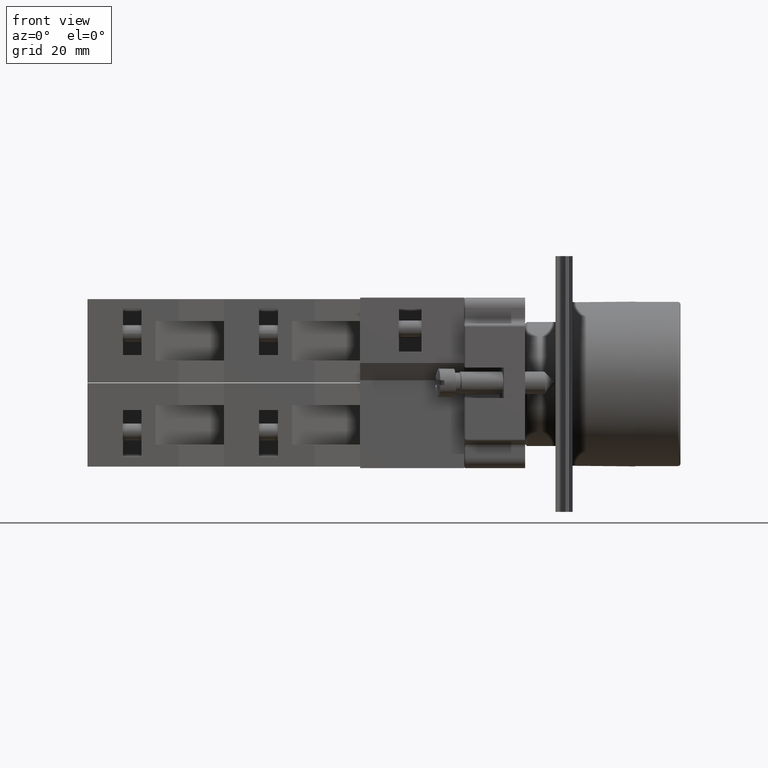
[diagram: clean part render]
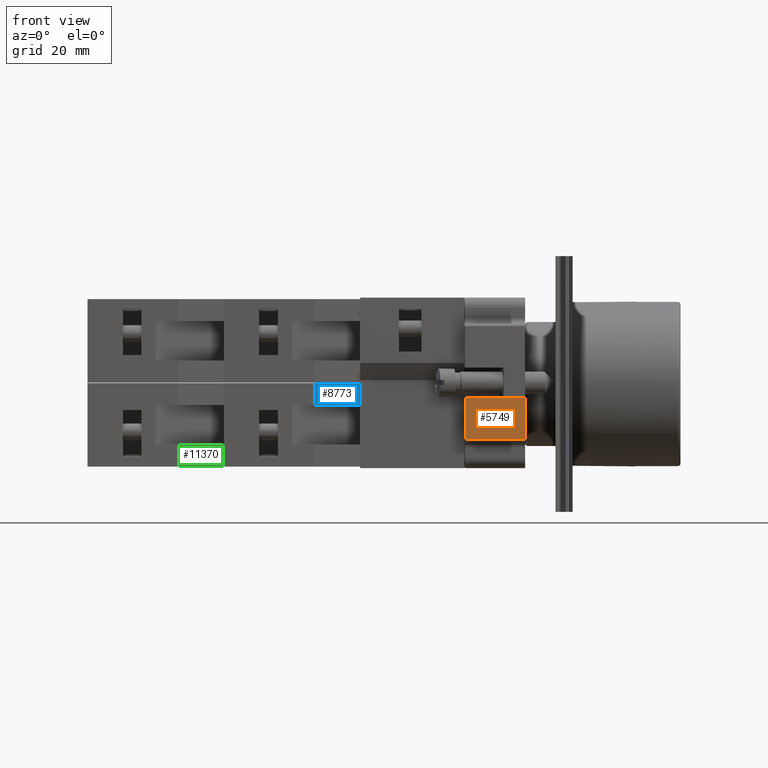
[diagram: same view with three faces highlighted in distinct colors, each labeled with its STEP entity id]
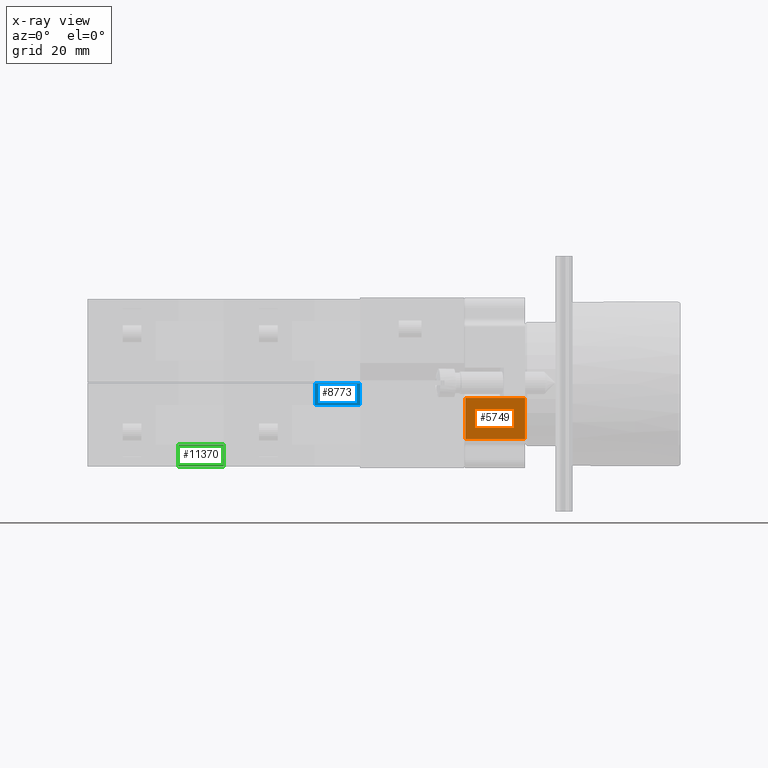
[diagram: x-ray of the same camera — body ghosted, the three highlighted faces saturated]
A machine part, front view with three faces highlighted in distinct colors.
The next image is the same camera in x-ray (body ghosted, the three faces saturated) — at least one of them is partly hidden behind the body in this view.
Their STEP definitions:

[orange] entity #5749 — the highlighted planar face has unit normal (0, -1, -0).
#881=CARTESIAN_POINT('',(-18.982780308276109,12.817864828157555,10.500000000000000));
#882=VERTEX_POINT('',#881);
#915=CARTESIAN_POINT('',(-18.982780308276109,20.017864828157556,10.500000000000000));
#916=VERTEX_POINT('',#915);
#924=CARTESIAN_POINT('',(-18.982780308276109,20.017864828157556,10.500000000000000));
#925=DIRECTION('',(0.0,-1.0,0.0));
#926=VECTOR('',#925,7.200000000000001);
#927=LINE('',#924,#926);
#928=EDGE_CURVE('',#916,#882,#927,.T.);
#4236=CARTESIAN_POINT('',(-18.982780308276109,12.817864828157555,0.0));
#4237=VERTEX_POINT('',#4236);
#4244=CARTESIAN_POINT('',(-18.982780308276109,20.017864828157556,0.0));
#4245=VERTEX_POINT('',#4244);
#4246=CARTESIAN_POINT('',(-18.982780308276109,20.017864828157556,0.0));
#4247=DIRECTION('',(0.0,-1.0,0.0));
#4248=VECTOR('',#4247,7.200000000000001);
#4249=LINE('',#4246,#4248);
#4250=EDGE_CURVE('',#4245,#4237,#4249,.T.);
#5720=CARTESIAN_POINT('',(-18.982780308276109,12.817864828157555,0.0));
#5721=DIRECTION('',(0.0,0.0,1.0));
#5722=VECTOR('',#5721,10.500000000000000);
#5723=LINE('',#5720,#5722);
#5724=EDGE_CURVE('',#4237,#882,#5723,.T.);
#5733=CARTESIAN_POINT('',(-18.982780308276109,12.817864828157555,0.0));
#5734=DIRECTION('',(-1.0,0.0,0.0));
#5735=DIRECTION('',(0.0,0.0,1.0));
#5736=AXIS2_PLACEMENT_3D('',#5733,#5734,#5735);
#5737=PLANE('',#5736);
#5738=ORIENTED_EDGE('',*,*,#928,.F.);
#5739=CARTESIAN_POINT('',(-18.982780308276109,20.017864828157556,0.0));
#5740=DIRECTION('',(0.0,0.0,1.0));
#5741=VECTOR('',#5740,10.500000000000000);
#5742=LINE('',#5739,#5741);
#5743=EDGE_CURVE('',#4245,#916,#5742,.T.);
#5744=ORIENTED_EDGE('',*,*,#5743,.F.);
#5745=ORIENTED_EDGE('',*,*,#4250,.T.);
#5746=ORIENTED_EDGE('',*,*,#5724,.T.);
#5747=EDGE_LOOP('',(#5738,#5744,#5745,#5746));
#5748=FACE_OUTER_BOUND('',#5747,.T.);
#5749=ADVANCED_FACE('',(#5748),#5737,.T.);

[blue] entity #8773 — the highlighted planar face has unit normal (0.1843, -0.9829, 0).
#7286=CARTESIAN_POINT('',(-15.936741828918466,7.797073323279631,3.850000000000000));
#7287=VERTEX_POINT('',#7286);
#7288=CARTESIAN_POINT('',(-17.436741828918457,-0.202926676720378,3.850000000000000));
#7289=VERTEX_POINT('',#7288);
#7290=CARTESIAN_POINT('',(-15.936741828918466,7.797073323279631,3.850000000000000));
#7291=DIRECTION('',(-0.184288535050184,-0.982872186934322,0.0));
#7292=VECTOR('',#7291,8.139410298049860);
#7293=LINE('',#7290,#7292);
#7294=EDGE_CURVE('',#7287,#7289,#7293,.T.);
#7326=CARTESIAN_POINT('',(-17.436741828918457,-0.202926676720377,0.0));
#7327=VERTEX_POINT('',#7326);
#7334=CARTESIAN_POINT('',(-17.436741828918457,-0.202926676720377,0.0));
#7335=DIRECTION('',(0.0,0.0,1.0));
#7336=VECTOR('',#7335,3.850000000000000);
#7337=LINE('',#7334,#7336);
#7338=EDGE_CURVE('',#7327,#7289,#7337,.T.);
#8724=CARTESIAN_POINT('',(-15.936741828918466,7.797073323279626,0.0));
#8725=VERTEX_POINT('',#8724);
#8726=CARTESIAN_POINT('',(-15.936741828918466,7.797073323279626,0.0));
#8727=DIRECTION('',(0.0,0.0,1.0));
#8728=VECTOR('',#8727,3.850000000000000);
#8729=LINE('',#8726,#8728);
#8730=EDGE_CURVE('',#8725,#7287,#8729,.T.);
#8757=CARTESIAN_POINT('',(-15.936741828918466,7.797073323279626,0.0));
#8758=DIRECTION('',(0.982872186934322,-0.184288535050184,0.0));
#8759=DIRECTION('',(0.0,0.0,-1.0));
#8760=AXIS2_PLACEMENT_3D('',#8757,#8758,#8759);
#8761=PLANE('',#8760);
#8762=ORIENTED_EDGE('',*,*,#7294,.T.);
#8763=ORIENTED_EDGE('',*,*,#7338,.F.);
#8764=CARTESIAN_POINT('',(-15.936741828918466,7.797073323279626,0.0));
#8765=DIRECTION('',(-0.184288535050184,-0.982872186934322,0.0));
#8766=VECTOR('',#8765,8.139410298049855);
#8767=LINE('',#8764,#8766);
#8768=EDGE_CURVE('',#8725,#7327,#8767,.T.);
#8769=ORIENTED_EDGE('',*,*,#8768,.F.);
#8770=ORIENTED_EDGE('',*,*,#8730,.T.);
#8771=EDGE_LOOP('',(#8762,#8763,#8769,#8770));
#8772=FACE_OUTER_BOUND('',#8771,.T.);
#8773=ADVANCED_FACE('',(#8772),#8761,.T.);

[green] entity #11370 — the highlighted planar face has unit normal (0.1843, -0.9829, -0).
#11132=CARTESIAN_POINT('',(-17.436741828918457,-0.202926676720378,10.850000000000000));
#11133=VERTEX_POINT('',#11132);
#11134=CARTESIAN_POINT('',(-15.936741828918466,7.797073323279626,10.850000000000000));
#11135=VERTEX_POINT('',#11134);
#11136=CARTESIAN_POINT('',(-17.436741828918457,-0.202926676720378,10.850000000000000));
#11137=DIRECTION('',(0.184288535050184,0.982872186934322,0.0));
#11138=VECTOR('',#11137,8.139410298049855);
#11139=LINE('',#11136,#11138);
#11140=EDGE_CURVE('',#11133,#11135,#11139,.T.);
#11260=CARTESIAN_POINT('',(-17.436741828918457,-0.202926676720377,14.699999999999999));
#11261=VERTEX_POINT('',#11260);
#11262=CARTESIAN_POINT('',(-17.436741828918457,-0.202926676720378,10.850000000000000));
#11263=DIRECTION('',(0.0,0.0,1.0));
#11264=VECTOR('',#11263,3.850000000000000);
#11265=LINE('',#11262,#11264);
#11266=EDGE_CURVE('',#11133,#11261,#11265,.T.);
#11347=CARTESIAN_POINT('',(-15.936741828918466,7.797073323279626,0.0));
#11348=DIRECTION('',(0.982872186934322,-0.184288535050184,0.0));
#11349=DIRECTION('',(0.0,0.0,-1.0));
#11350=AXIS2_PLACEMENT_3D('',#11347,#11348,#11349);
#11351=PLANE('',#11350);
#11352=ORIENTED_EDGE('',*,*,#11140,.T.);
#11353=CARTESIAN_POINT('',(-15.936741828918466,7.797073323279626,14.699999999999999));
#11354=VERTEX_POINT('',#11353);
#11355=CARTESIAN_POINT('',(-15.936741828918466,7.797073323279626,10.850000000000000));
#11356=DIRECTION('',(0.0,0.0,1.0));
#11357=VECTOR('',#11356,3.850000000000000);
#11358=LINE('',#11355,#11357);
#11359=EDGE_CURVE('',#11135,#11354,#11358,.T.);
#11360=ORIENTED_EDGE('',*,*,#11359,.T.);
#11361=CARTESIAN_POINT('',(-15.936741828918466,7.797073323279626,14.699999999999999));
#11362=DIRECTION('',(-0.184288535050184,-0.982872186934322,0.0));
#11363=VECTOR('',#11362,8.139410298049855);
#11364=LINE('',#11361,#11363);
#11365=EDGE_CURVE('',#11354,#11261,#11364,.T.);
#11366=ORIENTED_EDGE('',*,*,#11365,.T.);
#11367=ORIENTED_EDGE('',*,*,#11266,.F.);
#11368=EDGE_LOOP('',(#11352,#11360,#11366,#11367));
#11369=FACE_OUTER_BOUND('',#11368,.T.);
#11370=ADVANCED_FACE('',(#11369),#11351,.T.);